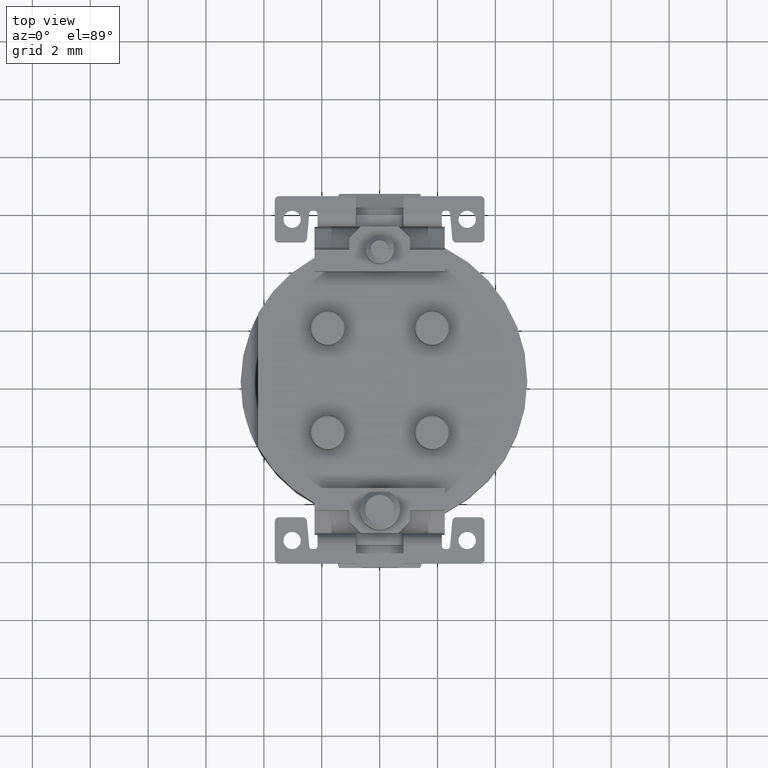
[diagram: clean part render]
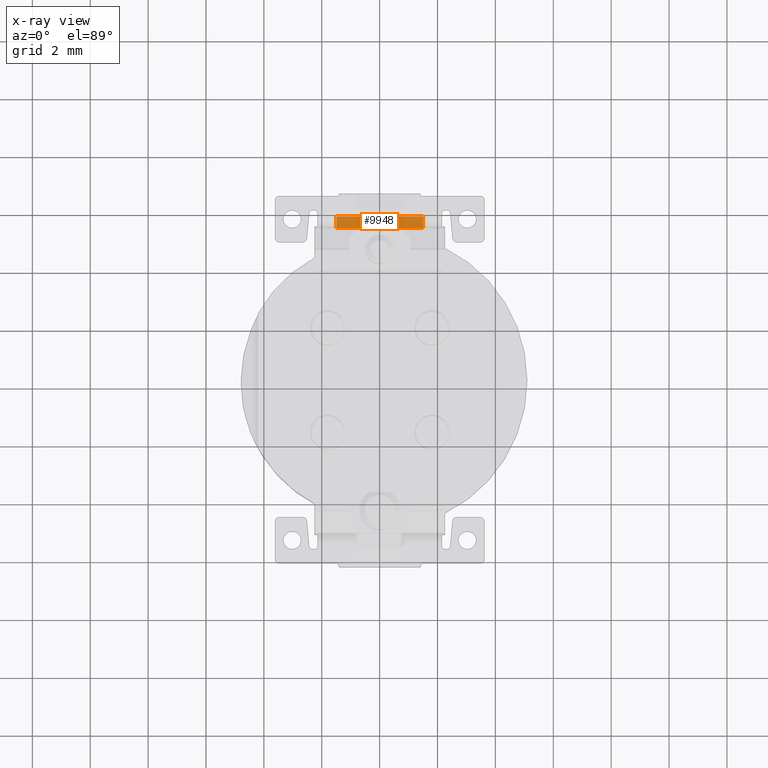
[diagram: x-ray — body ghosted, one internal face saturated and labeled with its STEP entity id]
A machine part, top view, then the same camera in x-ray: the body is ghosted and one INTERNAL B-rep face — a face not visible from any outside direction — is saturated and labeled: STEP entity #9948.
In plain terms, the highlighted planar face has unit normal (0, 0, -1).
Its self-contained STEP definition (entity closure, byte-faithful):
#1001=DIRECTION('',(-1.E0,0.E0,0.E0));
#1002=VECTOR('',#1001,3.E0);
#1003=CARTESIAN_POINT('',(1.5E0,5.7E0,-3.226460183660E0));
#1004=LINE('',#1003,#1002);
#1283=DIRECTION('',(-1.E0,0.E0,0.E0));
#1284=VECTOR('',#1283,3.E0);
#1285=CARTESIAN_POINT('',(1.5E0,5.3E0,-3.226460183660E0));
#1286=LINE('',#1285,#1284);
#1309=DIRECTION('',(0.E0,-1.E0,0.E0));
#1310=VECTOR('',#1309,4.E-1);
#1311=CARTESIAN_POINT('',(-1.5E0,5.7E0,-3.226460183660E0));
#1312=LINE('',#1311,#1310);
#1313=DIRECTION('',(0.E0,-1.E0,0.E0));
#1314=VECTOR('',#1313,4.E-1);
#1315=CARTESIAN_POINT('',(1.5E0,5.7E0,-3.226460183660E0));
#1316=LINE('',#1315,#1314);
#8071=CARTESIAN_POINT('',(1.5E0,5.7E0,-3.226460183660E0));
#8072=CARTESIAN_POINT('',(-1.5E0,5.7E0,-3.226460183660E0));
#8073=VERTEX_POINT('',#8071);
#8074=VERTEX_POINT('',#8072);
#8139=CARTESIAN_POINT('',(1.5E0,5.3E0,-3.226460183660E0));
#8140=CARTESIAN_POINT('',(-1.5E0,5.3E0,-3.226460183660E0));
#8141=VERTEX_POINT('',#8139);
#8142=VERTEX_POINT('',#8140);
#9935=CARTESIAN_POINT('',(0.E0,5.5E0,-3.226460183660E0));
#9936=DIRECTION('',(0.E0,0.E0,-1.E0));
#9937=DIRECTION('',(-1.E0,0.E0,0.E0));
#9938=AXIS2_PLACEMENT_3D('',#9935,#9936,#9937);
#9939=PLANE('',#9938);
#9940=ORIENTED_EDGE('',*,*,#9917,.T.);
#9942=ORIENTED_EDGE('',*,*,#9941,.F.);
#9943=ORIENTED_EDGE('',*,*,#9519,.F.);
#9945=ORIENTED_EDGE('',*,*,#9944,.T.);
#9946=EDGE_LOOP('',(#9940,#9942,#9943,#9945));
#9947=FACE_OUTER_BOUND('',#9946,.F.);
#9519=EDGE_CURVE('',#8073,#8074,#1004,.T.);
#9917=EDGE_CURVE('',#8141,#8142,#1286,.T.);
#9941=EDGE_CURVE('',#8074,#8142,#1312,.T.);
#9944=EDGE_CURVE('',#8073,#8141,#1316,.T.);
#9948=ADVANCED_FACE('',(#9947),#9939,.F.);